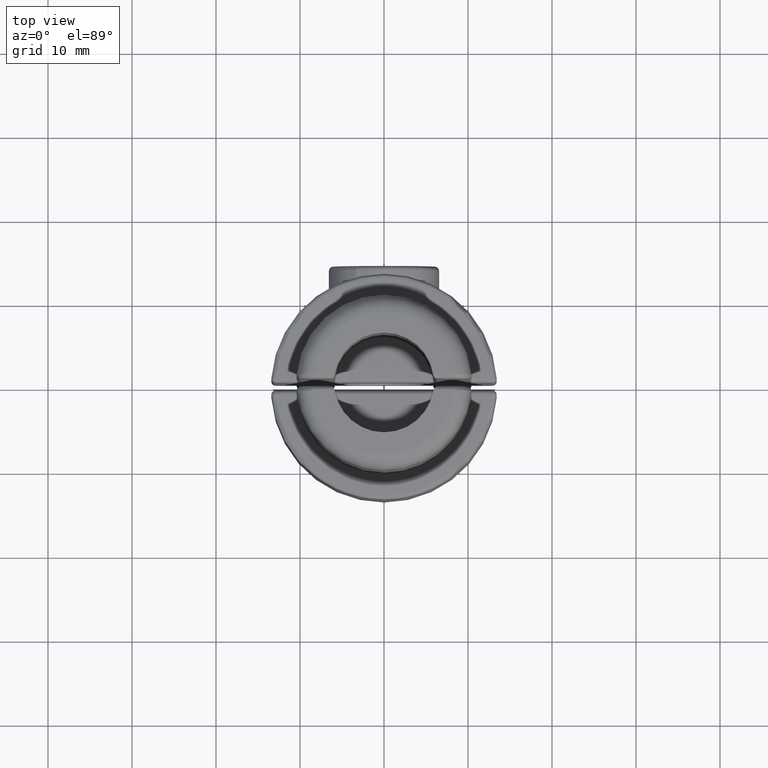
[diagram: clean part render]
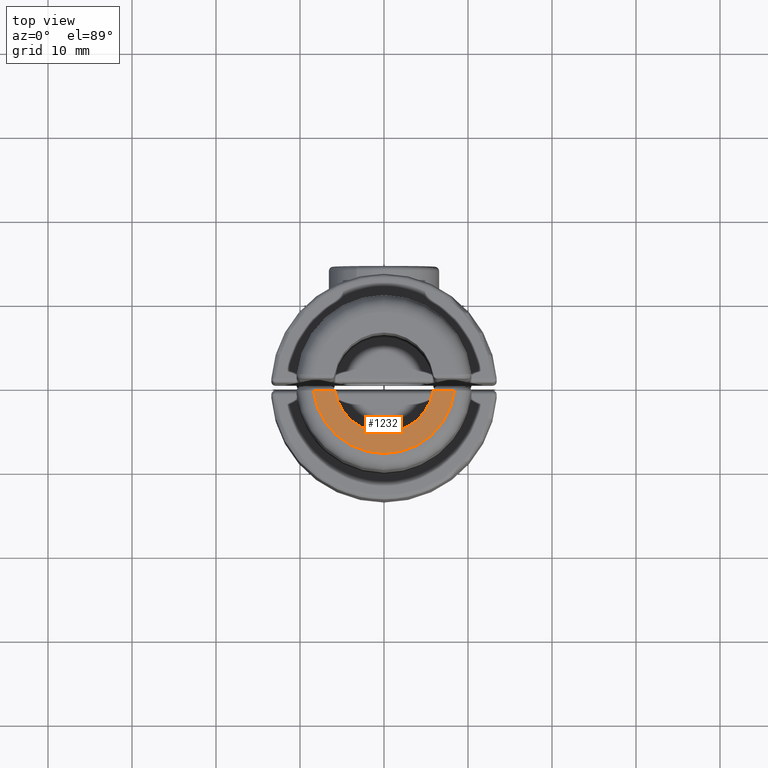
[diagram: same view with one face highlighted and labeled with its STEP entity id]
A machine part, top view. The second image highlights one B-rep face of the part: STEP entity #1232.
In plain terms, the highlighted planar face has unit normal (0, -0, 1).
Its self-contained STEP definition (entity closure, byte-faithful):
#16 = CARTESIAN_POINT ( 'NONE',  ( 8.266365894244642961E-17, -0.4500000000000007327, -39.00000000000000000 ) ) ;
#152 = CARTESIAN_POINT ( 'NONE',  ( -8.438009243891595901, 0.5000000000000008882, -39.00000000000000000 ) ) ;
#376 = CARTESIAN_POINT ( 'NONE',  ( 8.266365894244642961E-17, -0.4500000000000007327, -39.00000000000000000 ) ) ;
#880 = DIRECTION ( 'NONE',  ( 0.000000000000000000, 0.000000000000000000, -1.000000000000000000 ) ) ;
#1051 = EDGE_LOOP ( 'NONE', ( #8088, #2706, #9566, #5024 ) ) ;
#1218 = VERTEX_POINT ( 'NONE', #4514 ) ;
#1227 = DIRECTION ( 'NONE',  ( -1.000000000000000000, 0.000000000000000000, 0.000000000000000000 ) ) ;
#1232 = ADVANCED_FACE ( 'NONE', ( #8578 ), #4488, .T. ) ;
#1367 = VECTOR ( 'NONE', #6886, 1000.000000000000000 ) ;
#1553 = DIRECTION ( 'NONE',  ( -1.000000000000000000, -1.836970198721029688E-16, -0.000000000000000000 ) ) ;
#1625 = CARTESIAN_POINT ( 'NONE',  ( 5.932958789676533229, 0.5000000000000035527, -39.00000000000000000 ) ) ;
#2047 = DIRECTION ( 'NONE',  ( 0.000000000000000000, 0.000000000000000000, -1.000000000000000000 ) ) ;
#2470 = AXIS2_PLACEMENT_3D ( 'NONE', #16, #880, #7539 ) ;
#2706 = ORIENTED_EDGE ( 'NONE', *, *, #7291, .T. ) ;
#2856 = LINE ( 'NONE', #1625, #8115 ) ;
#3801 = LINE ( 'NONE', #152, #1367 ) ;
#3895 = EDGE_CURVE ( 'NONE', #4368, #7438, #7246, .T. ) ;
#4368 = VERTEX_POINT ( 'NONE', #9257 ) ;
#4488 = PLANE ( 'NONE',  #2470 ) ;
#4514 = CARTESIAN_POINT ( 'NONE',  ( 8.396427811873332203, 0.5000000000000039968, -39.00000000000000000 ) ) ;
#4599 = EDGE_CURVE ( 'NONE', #5627, #1218, #5569, .T. ) ;
#4948 = DIRECTION ( 'NONE',  ( 0.000000000000000000, 0.000000000000000000, -1.000000000000000000 ) ) ;
#4962 = EDGE_CURVE ( 'NONE', #4368, #5627, #3801, .T. ) ;
#5002 = CARTESIAN_POINT ( 'NONE',  ( 8.266365894244642961E-17, -0.4499999999999999001, -39.00000000000000000 ) ) ;
#5024 = ORIENTED_EDGE ( 'NONE', *, *, #4962, .T. ) ;
#5552 = CARTESIAN_POINT ( 'NONE',  ( 5.873670062235367695, 0.5000000000000037748, -39.00000000000000000 ) ) ;
#5569 = CIRCLE ( 'NONE', #6293, 8.450000000000001066 ) ;
#5627 = VERTEX_POINT ( 'NONE', #8683 ) ;
#6293 = AXIS2_PLACEMENT_3D ( 'NONE', #376, #4948, #1227 ) ;
#6770 = AXIS2_PLACEMENT_3D ( 'NONE', #5002, #2047, #7284 ) ;
#6886 = DIRECTION ( 'NONE',  ( -1.000000000000000000, -1.836970198721029688E-16, -0.000000000000000000 ) ) ;
#7246 = CIRCLE ( 'NONE', #6770, 5.950000000000001954 ) ;
#7284 = DIRECTION ( 'NONE',  ( 1.000000000000000000, 0.000000000000000000, 0.000000000000000000 ) ) ;
#7291 = EDGE_CURVE ( 'NONE', #1218, #7438, #2856, .T. ) ;
#7438 = VERTEX_POINT ( 'NONE', #5552 ) ;
#7539 = DIRECTION ( 'NONE',  ( 1.000000000000000000, 0.000000000000000000, 0.000000000000000000 ) ) ;
#8088 = ORIENTED_EDGE ( 'NONE', *, *, #4599, .T. ) ;
#8115 = VECTOR ( 'NONE', #1553, 1000.000000000000000 ) ;
#8578 = FACE_OUTER_BOUND ( 'NONE', #1051, .T. ) ;
#8683 = CARTESIAN_POINT ( 'NONE',  ( -8.396427811873333980, 0.5000000000000009992, -39.00000000000000000 ) ) ;
#9257 = CARTESIAN_POINT ( 'NONE',  ( -5.873670062235366807, 0.5000000000000013323, -39.00000000000000000 ) ) ;
#9566 = ORIENTED_EDGE ( 'NONE', *, *, #3895, .F. ) ;